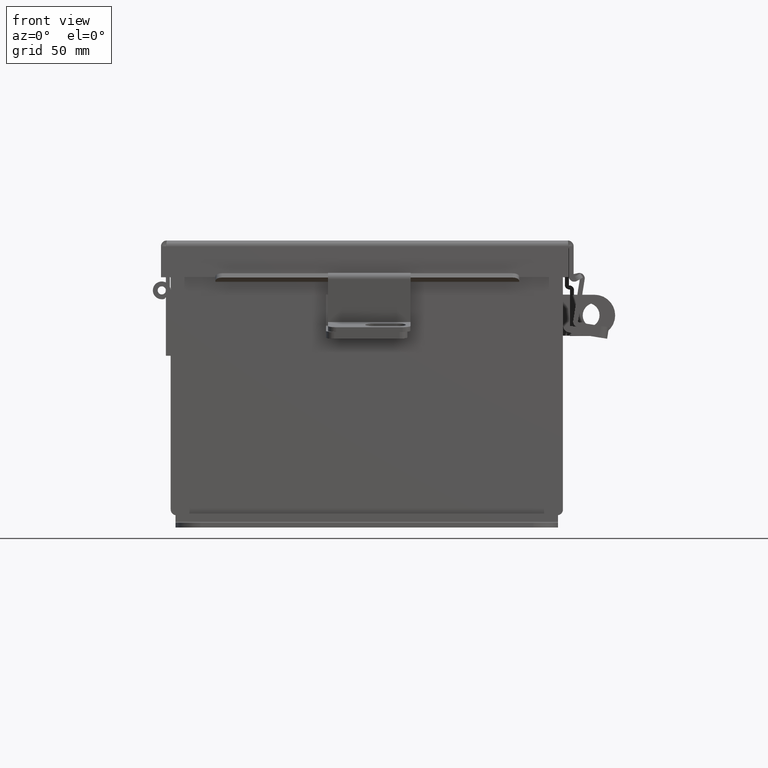
[diagram: clean part render]
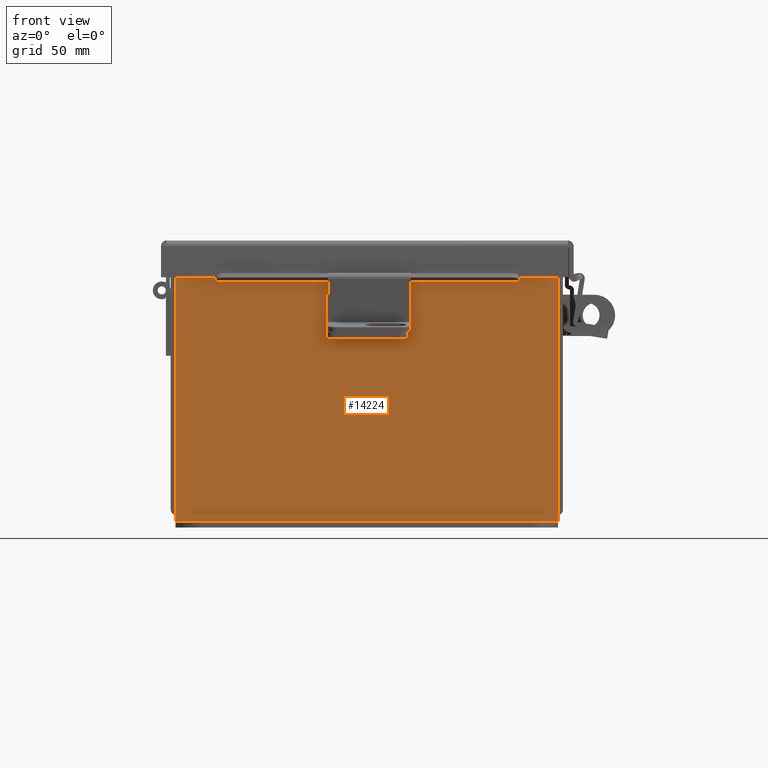
[diagram: same view with one face highlighted and labeled with its STEP entity id]
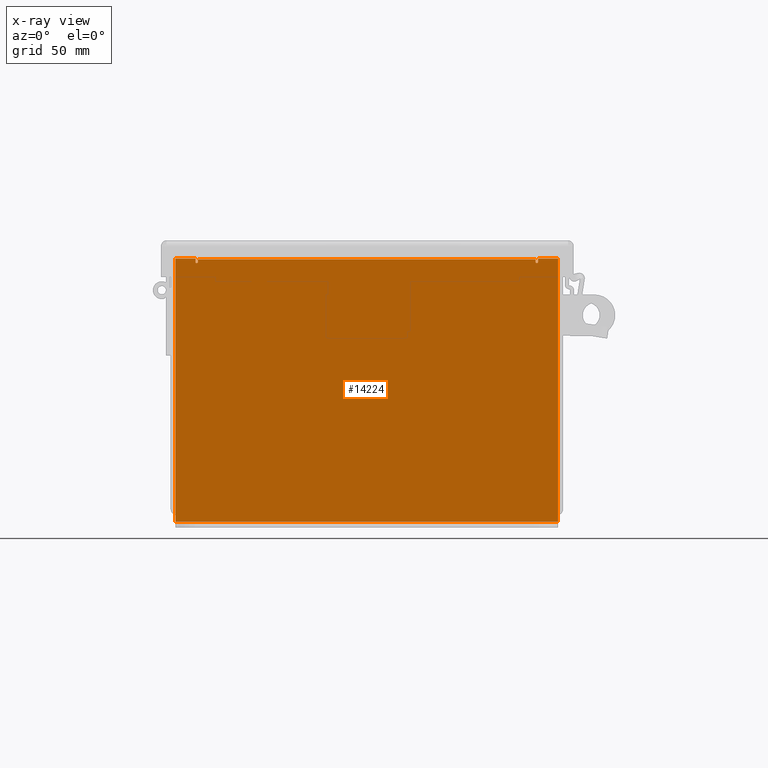
[diagram: x-ray of the same camera — body ghosted, the highlighted face saturated]
A machine part, front view. The second image highlights one B-rep face of the part: STEP entity #14224.
The next image is the same camera in x-ray: the body ghosted, the highlighted face saturated — about 0% of this face is hidden behind the body in this view.
In plain terms, the highlighted planar face has unit normal (-0, 1, -0).
Its self-contained STEP definition (entity closure, byte-faithful):
#93 = VERTEX_POINT ( 'NONE', #2628 ) ;
#94 = CARTESIAN_POINT ( 'NONE',  ( -2.600975000000004900, 0.0000000000000000000, 1.874950000000000300 ) ) ;
#177 = EDGE_LOOP ( 'NONE', ( #1486, #6338, #6156, #2025, #10060, #12717, #12001, #12965, #6799, #4485, #5087, #10772 ) ) ;
#299 = CARTESIAN_POINT ( 'NONE',  ( -2.925300000000000500, 0.0000000000000000000, 1.925300000000000700 ) ) ;
#335 = DIRECTION ( 'NONE',  ( 1.000000000000000000, 4.910036603141682400E-031, 0.0000000000000000000 ) ) ;
#349 = FACE_OUTER_BOUND ( 'NONE', #177, .T. ) ;
#378 = VECTOR ( 'NONE', #2466, 39.37007874015748100 ) ;
#463 = CARTESIAN_POINT ( 'NONE',  ( 2.619649999999995100, 4.370956789862821100E-015, 1.874949999999999900 ) ) ;
#547 = LINE ( 'NONE', #6056, #8974 ) ;
#823 = CARTESIAN_POINT ( 'NONE',  ( -2.619650000000000500, 0.0000000000000000000, 1.925300000000000700 ) ) ;
#844 = VECTOR ( 'NONE', #335, 39.37007874015748100 ) ;
#922 = CARTESIAN_POINT ( 'NONE',  ( 2.925299999999999600, 4.370956789862821100E-015, 1.925300000000001100 ) ) ;
#1202 = DIRECTION ( 'NONE',  ( 0.0000000000000000000, 0.0000000000000000000, -1.000000000000000000 ) ) ;
#1408 = DIRECTION ( 'NONE',  ( 0.0000000000000000000, 0.0000000000000000000, 1.000000000000000000 ) ) ;
#1486 = ORIENTED_EDGE ( 'NONE', *, *, #3858, .F. ) ;
#1495 = EDGE_CURVE ( 'NONE', #4805, #8537, #12713, .T. ) ;
#1668 = VERTEX_POINT ( 'NONE', #13224 ) ;
#1669 = LINE ( 'NONE', #7363, #12993 ) ;
#1994 = AXIS2_PLACEMENT_3D ( 'NONE', #11091, #4513, #12203 ) ;
#2025 = ORIENTED_EDGE ( 'NONE', *, *, #12996, .T. ) ;
#2274 = CARTESIAN_POINT ( 'NONE',  ( 0.0000000000000000000, 0.0000000000000000000, 0.0000000000000000000 ) ) ;
#2466 = DIRECTION ( 'NONE',  ( 1.000000000000000000, 4.910036603141682400E-031, -0.0000000000000000000 ) ) ;
#2628 = CARTESIAN_POINT ( 'NONE',  ( -2.582300000000000500, 1.092739197465705300E-015, 1.912300000000000600 ) ) ;
#2998 = CARTESIAN_POINT ( 'NONE',  ( 2.925299999999995100, 3.824587191129968100E-015, -2.099299999999999100 ) ) ;
#3108 = AXIS2_PLACEMENT_3D ( 'NONE', #2274, #5573, #13246 ) ;
#3289 = LINE ( 'NONE', #12301, #378 ) ;
#3755 = LINE ( 'NONE', #4706, #844 ) ;
#3858 = EDGE_CURVE ( 'NONE', #10543, #11974, #13881, .T. ) ;
#4485 = ORIENTED_EDGE ( 'NONE', *, *, #13201, .F. ) ;
#4513 = DIRECTION ( 'NONE',  ( 4.910036603141682400E-031, 1.000000000000000000, -0.0000000000000000000 ) ) ;
#4581 = VECTOR ( 'NONE', #1408, 39.37007874015748100 ) ;
#4625 = CARTESIAN_POINT ( 'NONE',  ( -2.925300000000000500, 0.0000000000000000000, 1.925300000000000700 ) ) ;
#4706 = CARTESIAN_POINT ( 'NONE',  ( -2.925300000000000500, 0.0000000000000000000, 1.925300000000000700 ) ) ;
#4805 = VERTEX_POINT ( 'NONE', #11237 ) ;
#4855 = EDGE_CURVE ( 'NONE', #4805, #9491, #3755, .T. ) ;
#5004 = VERTEX_POINT ( 'NONE', #6041 ) ;
#5055 = VERTEX_POINT ( 'NONE', #13322 ) ;
#5087 = ORIENTED_EDGE ( 'NONE', *, *, #8166, .T. ) ;
#5131 = VECTOR ( 'NONE', #6671, 39.37007874015748100 ) ;
#5254 = CARTESIAN_POINT ( 'NONE',  ( 2.925299999999999600, 4.370956789862821100E-015, 1.925300000000001100 ) ) ;
#5398 = CARTESIAN_POINT ( 'NONE',  ( 2.582299999999995200, 4.370956789862821100E-015, 1.874949999999999900 ) ) ;
#5458 = EDGE_CURVE ( 'NONE', #93, #5004, #5648, .T. ) ;
#5560 = EDGE_CURVE ( 'NONE', #9500, #5055, #13370, .T. ) ;
#5573 = DIRECTION ( 'NONE',  ( -4.910036603141682400E-031, -1.000000000000000000, -0.0000000000000000000 ) ) ;
#5648 = LINE ( 'NONE', #7457, #11138 ) ;
#6041 = CARTESIAN_POINT ( 'NONE',  ( -2.582300000000004900, 0.0000000000000000000, 1.874950000000000300 ) ) ;
#6056 = CARTESIAN_POINT ( 'NONE',  ( -2.582300000000000500, 1.092739197465705300E-015, 1.912300000000000600 ) ) ;
#6156 = ORIENTED_EDGE ( 'NONE', *, *, #5458, .F. ) ;
#6338 = ORIENTED_EDGE ( 'NONE', *, *, #12168, .F. ) ;
#6424 = LINE ( 'NONE', #5254, #9006 ) ;
#6646 = EDGE_CURVE ( 'NONE', #6960, #11974, #1669, .T. ) ;
#6671 = DIRECTION ( 'NONE',  ( 0.0000000000000000000, 0.0000000000000000000, 1.000000000000000000 ) ) ;
#6799 = ORIENTED_EDGE ( 'NONE', *, *, #11989, .T. ) ;
#6960 = VERTEX_POINT ( 'NONE', #4625 ) ;
#7163 = DIRECTION ( 'NONE',  ( 1.000000000000000000, 4.910036603141682400E-031, -0.0000000000000000000 ) ) ;
#7221 = VECTOR ( 'NONE', #12989, 39.37007874015748100 ) ;
#7278 = CIRCLE ( 'NONE', #13393, 0.01867500000000003900 ) ;
#7363 = CARTESIAN_POINT ( 'NONE',  ( -2.925300000000000500, 0.0000000000000000000, 1.925300000000000700 ) ) ;
#7457 = CARTESIAN_POINT ( 'NONE',  ( -2.582300000000000500, 0.0000000000000000000, -2.185478394931410600E-015 ) ) ;
#7711 = VERTEX_POINT ( 'NONE', #2998 ) ;
#7799 = DIRECTION ( 'NONE',  ( 4.910036603141682400E-031, 1.000000000000000000, -0.0000000000000000000 ) ) ;
#8166 = EDGE_CURVE ( 'NONE', #1668, #6960, #13330, .T. ) ;
#8510 = DIRECTION ( 'NONE',  ( 1.000000000000000000, 4.910036603141682400E-031, 0.0000000000000000000 ) ) ;
#8537 = VERTEX_POINT ( 'NONE', #463 ) ;
#8546 = DIRECTION ( 'NONE',  ( 0.0000000000000000000, 0.0000000000000000000, -1.000000000000000000 ) ) ;
#8696 = CARTESIAN_POINT ( 'NONE',  ( 2.582299999999999600, 0.0000000000000000000, 0.0000000000000000000 ) ) ;
#8879 = CARTESIAN_POINT ( 'NONE',  ( -2.619650000000000500, 0.0000000000000000000, 0.0000000000000000000 ) ) ;
#8974 = VECTOR ( 'NONE', #7163, 39.37007874015748100 ) ;
#9006 = VECTOR ( 'NONE', #10710, 39.37007874015748100 ) ;
#9491 = VERTEX_POINT ( 'NONE', #922 ) ;
#9500 = VERTEX_POINT ( 'NONE', #5398 ) ;
#9833 = CIRCLE ( 'NONE', #1994, 0.01867500000000003900 ) ;
#10060 = ORIENTED_EDGE ( 'NONE', *, *, #5560, .F. ) ;
#10543 = VERTEX_POINT ( 'NONE', #11074 ) ;
#10710 = DIRECTION ( 'NONE',  ( 0.0000000000000000000, 0.0000000000000000000, -1.000000000000000000 ) ) ;
#10772 = ORIENTED_EDGE ( 'NONE', *, *, #6646, .T. ) ;
#11041 = PLANE ( 'NONE',  #3108 ) ;
#11074 = CARTESIAN_POINT ( 'NONE',  ( -2.619650000000004900, 0.0000000000000000000, 1.874950000000000300 ) ) ;
#11091 = CARTESIAN_POINT ( 'NONE',  ( 2.600974999999995200, 4.370956789862821100E-015, 1.874949999999999900 ) ) ;
#11138 = VECTOR ( 'NONE', #8546, 39.37007874015748100 ) ;
#11237 = CARTESIAN_POINT ( 'NONE',  ( 2.619649999999999600, 4.370956789862821100E-015, 1.925300000000001100 ) ) ;
#11936 = CARTESIAN_POINT ( 'NONE',  ( 2.619649999999979200, 0.0000000000000000000, -2.841121913410833900E-014 ) ) ;
#11974 = VERTEX_POINT ( 'NONE', #823 ) ;
#11989 = EDGE_CURVE ( 'NONE', #9491, #7711, #6424, .T. ) ;
#12001 = ORIENTED_EDGE ( 'NONE', *, *, #1495, .F. ) ;
#12168 = EDGE_CURVE ( 'NONE', #5004, #10543, #7278, .T. ) ;
#12203 = DIRECTION ( 'NONE',  ( 0.0000000000000000000, 0.0000000000000000000, -1.000000000000000000 ) ) ;
#12301 = CARTESIAN_POINT ( 'NONE',  ( -2.925300000000004900, -5.463695987328526400E-016, -2.099299999999999100 ) ) ;
#12686 = VECTOR ( 'NONE', #14208, 39.37007874015748100 ) ;
#12713 = LINE ( 'NONE', #11936, #7221 ) ;
#12717 = ORIENTED_EDGE ( 'NONE', *, *, #13101, .F. ) ;
#12965 = ORIENTED_EDGE ( 'NONE', *, *, #4855, .T. ) ;
#12989 = DIRECTION ( 'NONE',  ( -1.085143195099989400E-014, 0.0000000000000000000, -1.000000000000000000 ) ) ;
#12993 = VECTOR ( 'NONE', #8510, 39.37007874015748100 ) ;
#12996 = EDGE_CURVE ( 'NONE', #93, #5055, #547, .T. ) ;
#13101 = EDGE_CURVE ( 'NONE', #8537, #9500, #9833, .T. ) ;
#13201 = EDGE_CURVE ( 'NONE', #1668, #7711, #3289, .T. ) ;
#13224 = CARTESIAN_POINT ( 'NONE',  ( -2.925300000000004500, -5.463695987328526400E-016, -2.099299999999999100 ) ) ;
#13246 = DIRECTION ( 'NONE',  ( 0.0000000000000000000, 0.0000000000000000000, -1.000000000000000000 ) ) ;
#13322 = CARTESIAN_POINT ( 'NONE',  ( 2.582299999999999600, 4.370956789862821100E-015, 1.912299999999999900 ) ) ;
#13330 = LINE ( 'NONE', #299, #4581 ) ;
#13370 = LINE ( 'NONE', #8696, #12686 ) ;
#13393 = AXIS2_PLACEMENT_3D ( 'NONE', #94, #7799, #1202 ) ;
#13881 = LINE ( 'NONE', #8879, #5131 ) ;
#14208 = DIRECTION ( 'NONE',  ( 0.0000000000000000000, 0.0000000000000000000, 1.000000000000000000 ) ) ;
#14224 = ADVANCED_FACE ( 'NONE', ( #349 ), #11041, .F. ) ;